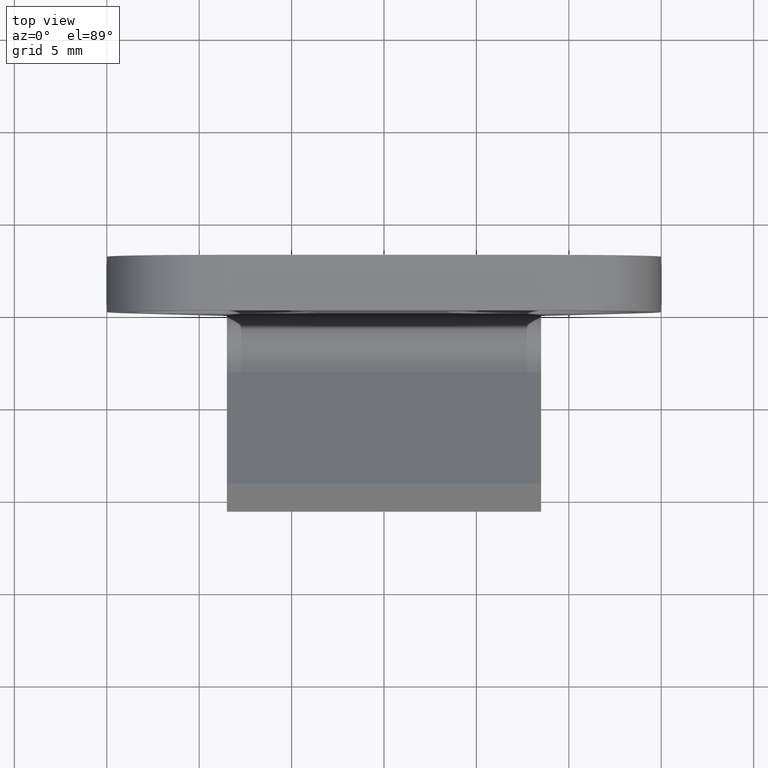
[diagram: clean part render]
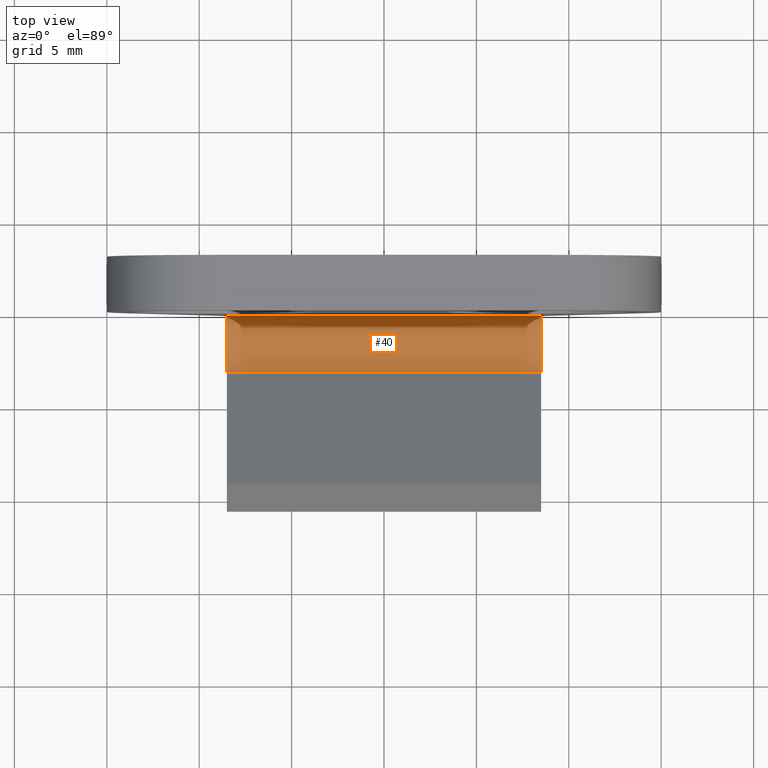
[diagram: same view with one face highlighted and labeled with its STEP entity id]
A machine part, top view. The second image highlights one B-rep face of the part: STEP entity #40.
In plain terms, the highlighted cylindrical surface (partial cylindrical patch) has radius 2 mm, axis along (1, -0, -0).
Its self-contained STEP definition (entity closure, byte-faithful):
#40=ADVANCED_FACE('',(#65),#64,.F.);
#64=CYLINDRICAL_SURFACE('',#311,2.00000000000E+00);
#65=FACE_OUTER_BOUND('',#312,.T.);
#308=CARTESIAN_POINT('',(9.91500000000E+02,-2.00000000000E+00,-1.10000000000E+01));
#309=DIRECTION('',(1.00000000000E+00,-0.00000000000E+00,-0.00000000000E+00));
#310=DIRECTION('',(0.00000000000E+00,-4.92423560103E-01,8.70355695940E-01));
#311=AXIS2_PLACEMENT_3D('',#308,#309,#310);
#312=EDGE_LOOP('',(#456,#457,#458,#459));
#456=ORIENTED_EDGE('',*,*,#576,.T.);
#457=ORIENTED_EDGE('',*,*,#577,.F.);
#458=ORIENTED_EDGE('',*,*,#578,.F.);
#459=ORIENTED_EDGE('',*,*,#579,.T.);
#576=EDGE_CURVE('',#636,#637,#638,.T.);
#577=EDGE_CURVE('',#644,#637,#645,.T.);
#578=EDGE_CURVE('',#651,#644,#652,.T.);
#579=EDGE_CURVE('',#651,#636,#658,.T.);
#636=VERTEX_POINT('',#1034);
#637=VERTEX_POINT('',#1035);
#638=CIRCLE('',#1039,2.00000000000E+00);
#644=VERTEX_POINT('',#1040);
#645=LINE('',#1041,#1042);
#651=VERTEX_POINT('',#1044);
#652=CIRCLE('',#1048,2.00000000000E+00);
#658=LINE('',#1049,#1050);
#1034=CARTESIAN_POINT('',(-8.50000000000E+00,0.00000000000E+00,-1.10000000000E+01));
#1035=CARTESIAN_POINT('',(-8.50000000000E+00,-3.02324011772E+00,-1.27184235978E+01));
#1036=CARTESIAN_POINT('',(-8.50000000000E+00,-2.00000000000E+00,-1.10000000000E+01));
#1037=DIRECTION('',(-1.00000000000E+00,-0.00000000000E+00,0.00000000000E+00));
#1038=DIRECTION('',(0.00000000000E+00,-0.00000000000E+00,1.00000000000E+00));
#1039=AXIS2_PLACEMENT_3D('',#1036,#1037,#1038);
#1040=CARTESIAN_POINT('',(8.50000000000E+00,-3.02324011772E+00,-1.27184235978E+01));
#1041=CARTESIAN_POINT('',(8.50000000000E+00,-3.02324011772E+00,-1.27184235978E+01));
#1042=VECTOR('',#1043,1.70000000000E+01);
#1043=DIRECTION('',(-1.00000000000E+00,0.00000000000E+00,0.00000000000E+00));
#1044=CARTESIAN_POINT('',(8.50000000000E+00,0.00000000000E+00,-1.10000000000E+01));
#1045=CARTESIAN_POINT('',(8.50000000000E+00,-2.00000000000E+00,-1.10000000000E+01));
#1046=DIRECTION('',(-1.00000000000E+00,-0.00000000000E+00,0.00000000000E+00));
#1047=DIRECTION('',(0.00000000000E+00,-0.00000000000E+00,1.00000000000E+00));
#1048=AXIS2_PLACEMENT_3D('',#1045,#1046,#1047);
#1049=CARTESIAN_POINT('',(8.50000000000E+00,0.00000000000E+00,-1.10000000000E+01));
#1050=VECTOR('',#1051,1.70000000000E+01);
#1051=DIRECTION('',(-1.00000000000E+00,0.00000000000E+00,0.00000000000E+00));